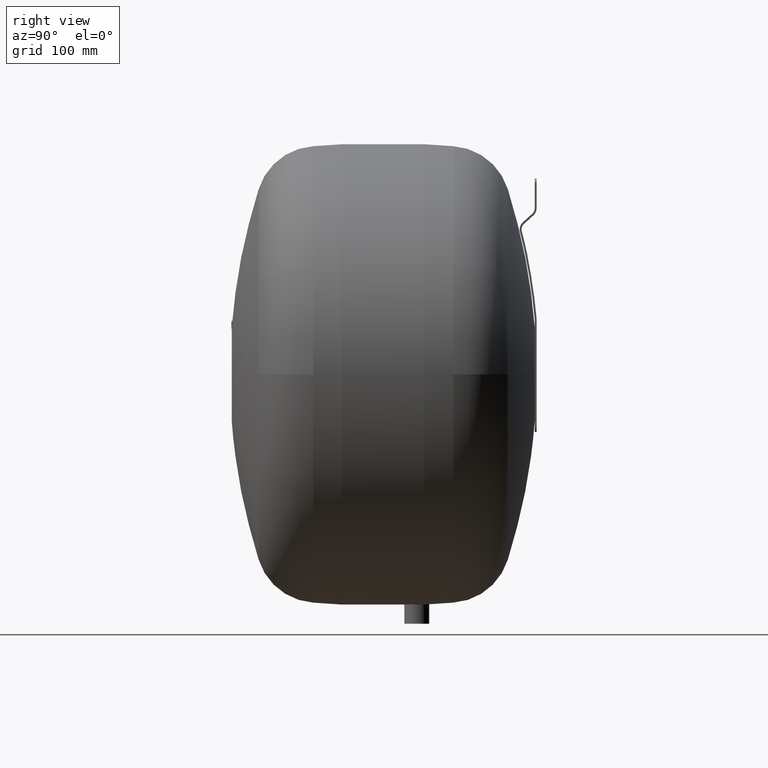
[diagram: clean part render]
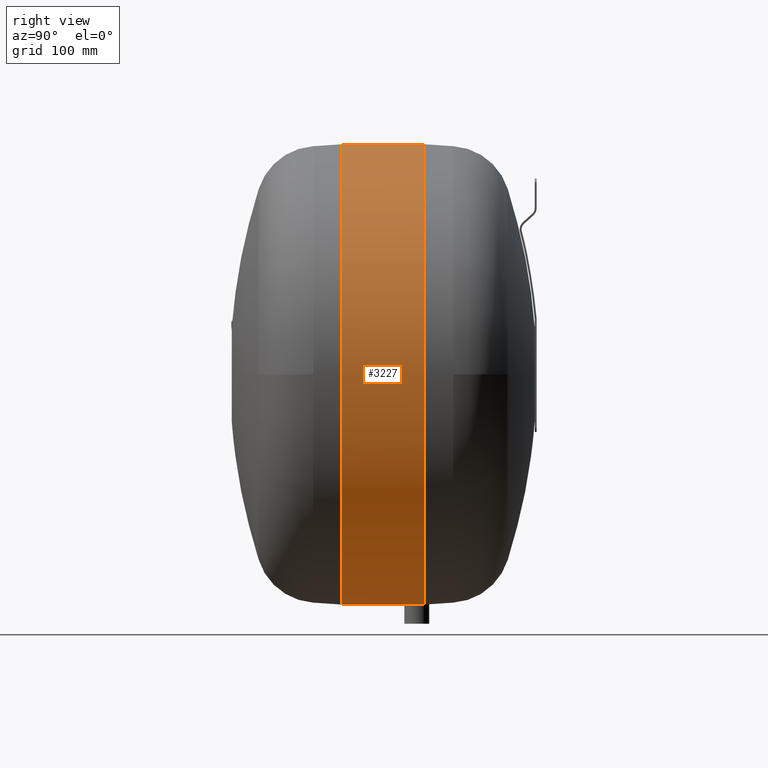
[diagram: same view with one face highlighted and labeled with its STEP entity id]
A machine part, right view. The second image highlights one B-rep face of the part: STEP entity #3227.
In plain terms, the highlighted cylindrical surface (partial cylindrical patch) has radius 240 mm, axis along (-0, -1, 0).
Its self-contained STEP definition (entity closure, byte-faithful):
#2619=CARTESIAN_POINT('',(3.208469E-014,8.000000000000085,500.00000000000006));
#2620=VERTEX_POINT('',#2619);
#2629=CARTESIAN_POINT('',(10.246950765959362,8.000000000000085,20.218849781722867));
#2630=VERTEX_POINT('',#2629);
#2631=CARTESIAN_POINT('',(1.738941E-014,8.000000000000085,260.00000000000006));
#2632=DIRECTION('',(0.0,-1.0,0.0));
#2633=DIRECTION('',(0.0,0.0,1.0));
#2634=AXIS2_PLACEMENT_3D('',#2631,#2632,#2633);
#2635=CIRCLE('',#2634,240.0);
#2636=EDGE_CURVE('',#2630,#2620,#2635,.T.);
#3153=CARTESIAN_POINT('',(1.628726E-014,-77.999999999999858,500.00000000000011));
#3154=VERTEX_POINT('',#3153);
#3169=CARTESIAN_POINT('',(1.628726E-014,-77.999999999999858,20.000000000000057));
#3170=VERTEX_POINT('',#3169);
#3177=CARTESIAN_POINT('',(1.591988E-015,-77.999999999999858,260.00000000000006));
#3178=DIRECTION('',(0.0,-1.0,0.0));
#3179=DIRECTION('',(0.0,0.0,1.0));
#3180=AXIS2_PLACEMENT_3D('',#3177,#3178,#3179);
#3181=CIRCLE('',#3180,240.00000000000003);
#3182=EDGE_CURVE('',#3170,#3154,#3181,.T.);
#3187=CARTESIAN_POINT('',(1.298083E-014,-15.999999999999901,260.00000000000006));
#3188=DIRECTION('',(-1.836910E-016,-1.0,0.0));
#3189=DIRECTION('',(0.0,0.0,1.0));
#3190=AXIS2_PLACEMENT_3D('',#3187,#3188,#3189);
#3191=CYLINDRICAL_SURFACE('',#3190,240.0);
#3192=CARTESIAN_POINT('',(1.628726E-014,-77.999999999999858,500.00000000000006));
#3193=DIRECTION('',(0.0,1.0,0.0));
#3194=VECTOR('',#3193,85.999999999999943);
#3195=LINE('',#3192,#3194);
#3196=EDGE_CURVE('',#3154,#2620,#3195,.T.);
#3197=ORIENTED_EDGE('',*,*,#3196,.F.);
#3198=ORIENTED_EDGE('',*,*,#3182,.F.);
#3199=CARTESIAN_POINT('',(-1.117962E-015,-12.99999999999997,20.000000000000064));
#3200=VERTEX_POINT('',#3199);
#3201=CARTESIAN_POINT('',(1.628726E-014,-77.999999999999858,20.000000000000057));
#3202=DIRECTION('',(0.0,1.0,0.0));
#3203=VECTOR('',#3202,64.999999999999886);
#3204=LINE('',#3201,#3203);
#3205=EDGE_CURVE('',#3170,#3200,#3204,.T.);
#3206=ORIENTED_EDGE('',*,*,#3205,.T.);
#3207=CARTESIAN_POINT('',(-2.442491E-015,-12.999999999999972,20.000000000000057));
#3208=CARTESIAN_POINT('',(1.632651509310975,-12.999999999999972,20.000000000000057));
#3209=CARTESIAN_POINT('',(3.373909403870818,-12.673648832555102,20.018370745642102));
#3210=CARTESIAN_POINT('',(6.576746678006829,-11.346851652243032,20.084781542748004));
#3211=CARTESIAN_POINT('',(8.038352992287383,-10.346423318562799,20.13187240701518));
#3212=CARTESIAN_POINT('',(10.346423654478238,-8.038352656371956,20.220340161781905));
#3213=CARTESIAN_POINT('',(11.346851735064048,-6.576746494381879,20.26746120340465));
#3214=CARTESIAN_POINT('',(12.673648700819241,-3.373909705574334,20.333941010984688));
#3215=CARTESIAN_POINT('',(12.999999999999973,-1.632651984541582,20.352341968464088));
#3216=CARTESIAN_POINT('',(12.999999999999975,1.632651984541596,20.352341968464088));
#3217=CARTESIAN_POINT('',(12.673648700819241,3.373909705574349,20.333941010984688));
#3218=CARTESIAN_POINT('',(11.558668000350679,6.065430185679233,20.278074360445288));
#3219=CARTESIAN_POINT('',(10.954588729866726,7.093608577964787,20.249090404764672));
#3220=CARTESIAN_POINT('',(10.246950765959362,8.000000000000085,20.218849781722867));
#3221=B_SPLINE_CURVE_WITH_KNOTS('',3,(#3207,#3208,#3209,#3210,#3211,#3212,#3213,#3214,#3215,#3216,#3217,#3218,#3219,#3220),.UNSPECIFIED.,.F.,.U.,(4,2,2,2,2,2,4),(1.959182096311534,2.448977549104827,2.93877300189812,3.428568597260594,3.918364192623068,4.408159787985542,4.741568722176433),.UNSPECIFIED.);
#3222=EDGE_CURVE('',#3200,#2630,#3221,.T.);
#3223=ORIENTED_EDGE('',*,*,#3222,.T.);
#3224=ORIENTED_EDGE('',*,*,#2636,.T.);
#3225=EDGE_LOOP('',(#3197,#3198,#3206,#3223,#3224));
#3226=FACE_OUTER_BOUND('',#3225,.T.);
#3227=ADVANCED_FACE('',(#3226),#3191,.T.);